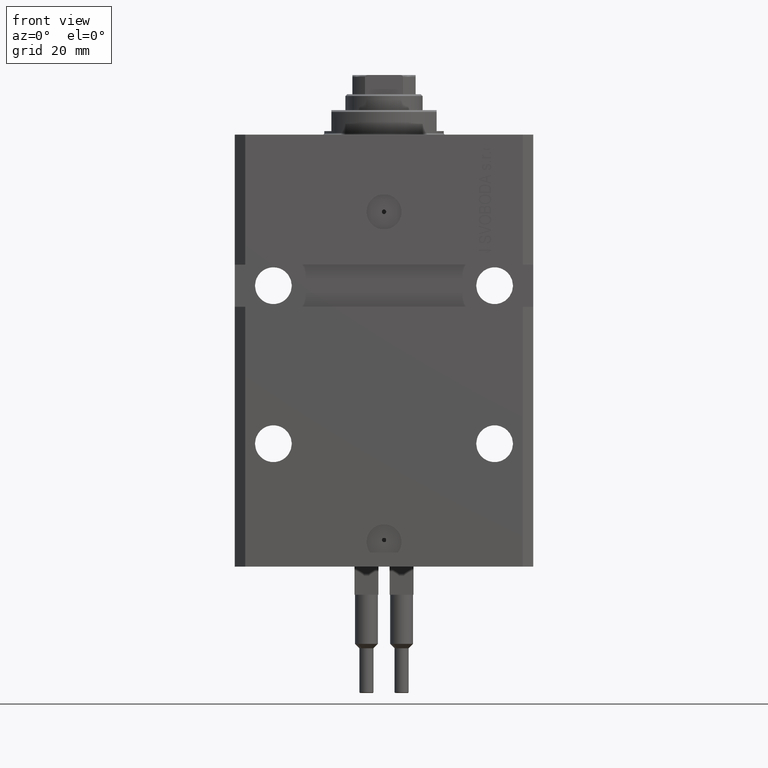
[diagram: clean part render]
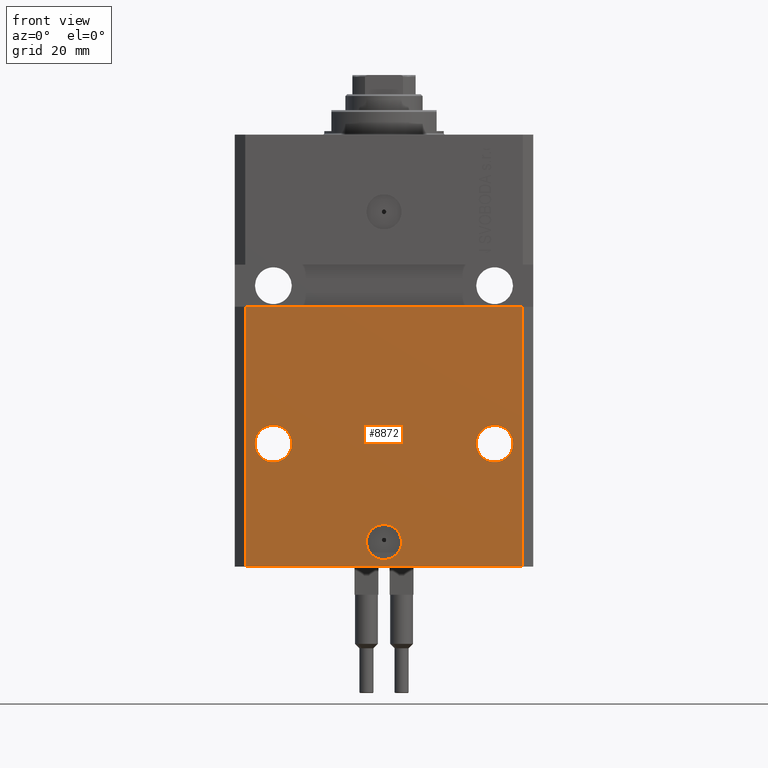
[diagram: same view with one face highlighted and labeled with its STEP entity id]
A machine part, front view. The second image highlights one B-rep face of the part: STEP entity #8872.
In plain terms, the highlighted planar face has unit normal (0, -1, 0).
Its self-contained STEP definition (entity closure, byte-faithful):
#525 = DIRECTION ( 'NONE',  ( 1.176083712526788232E-16, -1.000000000000000000, 0.000000000000000000 ) ) ;
#647 = AXIS2_PLACEMENT_3D ( 'NONE', #20380, #19906, #15464 ) ;
#1228 = DIRECTION ( 'NONE',  ( -1.000000000000000000, 0.000000000000000000, 0.000000000000000000 ) ) ;
#2431 = VERTEX_POINT ( 'NONE', #24863 ) ;
#4311 = PLANE ( 'NONE',  #647 ) ;
#4802 = FACE_OUTER_BOUND ( 'NONE', #31532, .T. ) ;
#4964 = VERTEX_POINT ( 'NONE', #45201 ) ;
#5240 = LINE ( 'NONE', #12923, #11755 ) ;
#6336 = DIRECTION ( 'NONE',  ( -1.000000000000000000, 0.000000000000000000, 0.000000000000000000 ) ) ;
#6623 = CARTESIAN_POINT ( 'NONE',  ( -39.50000000000000711, -31.50000000000000000, -123.0000000000000000 ) ) ;
#6790 = ORIENTED_EDGE ( 'NONE', *, *, #7045, .F. ) ;
#7045 = EDGE_CURVE ( 'NONE', #2431, #48688, #42571, .T. ) ;
#7280 = ORIENTED_EDGE ( 'NONE', *, *, #23198, .F. ) ;
#7544 = AXIS2_PLACEMENT_3D ( 'NONE', #22897, #37986, #19200 ) ;
#8429 = EDGE_LOOP ( 'NONE', ( #17490, #9817 ) ) ;
#8531 = ORIENTED_EDGE ( 'NONE', *, *, #22004, .T. ) ;
#8872 = ADVANCED_FACE ( 'NONE', ( #34992, #46371, #24093, #4802 ), #4311, .T. ) ;
#8986 = CARTESIAN_POINT ( 'NONE',  ( -36.75000000000001421, -31.50000000000000711, -88.00000000000000000 ) ) ;
#9195 = CARTESIAN_POINT ( 'NONE',  ( -39.50000000000000711, -31.50000000000000000, -123.0000000000000000 ) ) ;
#9573 = EDGE_CURVE ( 'NONE', #46129, #21626, #12530, .T. ) ;
#9735 = CARTESIAN_POINT ( 'NONE',  ( 39.50000000000001421, -31.49999999999999289, -48.99999999999997868 ) ) ;
#9817 = ORIENTED_EDGE ( 'NONE', *, *, #19580, .F. ) ;
#9985 = VECTOR ( 'NONE', #13324, 1000.000000000000000 ) ;
#11755 = VECTOR ( 'NONE', #23556, 1000.000000000000000 ) ;
#12017 = CARTESIAN_POINT ( 'NONE',  ( 39.50000000000000711, -31.50000000000000000, -123.0000000000000000 ) ) ;
#12530 = CIRCLE ( 'NONE', #38585, 5.249999999999997335 ) ;
#12923 = CARTESIAN_POINT ( 'NONE',  ( -39.50000000000000711, -31.50000000000000000, -123.0000000000000000 ) ) ;
#13324 = DIRECTION ( 'NONE',  ( 0.000000000000000000, 0.000000000000000000, 1.000000000000000000 ) ) ;
#14894 = VERTEX_POINT ( 'NONE', #6623 ) ;
#15464 = DIRECTION ( 'NONE',  ( 0.000000000000000000, -0.000000000000000000, -1.000000000000000000 ) ) ;
#17490 = ORIENTED_EDGE ( 'NONE', *, *, #9573, .F. ) ;
#19199 = CIRCLE ( 'NONE', #40479, 5.249999999999997335 ) ;
#19200 = DIRECTION ( 'NONE',  ( 1.000000000000000000, 0.000000000000000000, 0.000000000000000000 ) ) ;
#19580 = EDGE_CURVE ( 'NONE', #21626, #46129, #19199, .T. ) ;
#19906 = DIRECTION ( 'NONE',  ( 0.000000000000000000, -1.000000000000000000, 0.000000000000000000 ) ) ;
#20380 = CARTESIAN_POINT ( 'NONE',  ( -39.50000000000000711, -31.50000000000000000, -123.0000000000000000 ) ) ;
#20443 = ORIENTED_EDGE ( 'NONE', *, *, #20953, .F. ) ;
#20953 = EDGE_CURVE ( 'NONE', #47046, #47307, #24013, .T. ) ;
#20962 = CIRCLE ( 'NONE', #7544, 5.000000000000006217 ) ;
#21626 = VERTEX_POINT ( 'NONE', #24318 ) ;
#21692 = DIRECTION ( 'NONE',  ( 1.176083712526788232E-16, -1.000000000000000000, 0.000000000000000000 ) ) ;
#22004 = EDGE_CURVE ( 'NONE', #14894, #24065, #27253, .T. ) ;
#22897 = CARTESIAN_POINT ( 'NONE',  ( 0.000000000000000000, -31.50000000000000000, -115.9999999999999858 ) ) ;
#23198 = EDGE_CURVE ( 'NONE', #4964, #25131, #37360, .T. ) ;
#23556 = DIRECTION ( 'NONE',  ( 0.000000000000000000, 0.000000000000000000, 1.000000000000000000 ) ) ;
#23585 = CARTESIAN_POINT ( 'NONE',  ( 36.75000000000001421, -31.49999999999999289, -88.00000000000000000 ) ) ;
#24013 = LINE ( 'NONE', #43058, #26348 ) ;
#24065 = VERTEX_POINT ( 'NONE', #12017 ) ;
#24093 = FACE_BOUND ( 'NONE', #41127, .T. ) ;
#24209 = CARTESIAN_POINT ( 'NONE',  ( 39.50000000000000711, -31.50000000000000000, -123.0000000000000000 ) ) ;
#24318 = CARTESIAN_POINT ( 'NONE',  ( 26.25000000000001776, -31.49999999999999289, -88.00000000000000000 ) ) ;
#24863 = CARTESIAN_POINT ( 'NONE',  ( 5.000000000000006217, -31.50000000000000000, -115.9999999999999858 ) ) ;
#25131 = VERTEX_POINT ( 'NONE', #8986 ) ;
#25899 = CIRCLE ( 'NONE', #48038, 5.249999999999997335 ) ;
#26348 = VECTOR ( 'NONE', #46538, 1000.000000000000000 ) ;
#26506 = CARTESIAN_POINT ( 'NONE',  ( 0.000000000000000000, -31.50000000000000000, -115.9999999999999858 ) ) ;
#26930 = DIRECTION ( 'NONE',  ( 1.176083712526788232E-16, -1.000000000000000000, 0.000000000000000000 ) ) ;
#27253 = LINE ( 'NONE', #9195, #36517 ) ;
#27873 = AXIS2_PLACEMENT_3D ( 'NONE', #38345, #46260, #1228 ) ;
#29367 = CARTESIAN_POINT ( 'NONE',  ( 31.50000000000001421, -31.49999999999999289, -88.00000000000000000 ) ) ;
#29671 = CARTESIAN_POINT ( 'NONE',  ( 31.50000000000001421, -31.49999999999999289, -88.00000000000000000 ) ) ;
#30935 = CARTESIAN_POINT ( 'NONE',  ( -5.000000000000006217, -31.50000000000000000, -115.9999999999999858 ) ) ;
#31532 = EDGE_LOOP ( 'NONE', ( #20443, #38095, #8531, #38206 ) ) ;
#32384 = EDGE_LOOP ( 'NONE', ( #6790, #38455 ) ) ;
#34992 = FACE_BOUND ( 'NONE', #32384, .T. ) ;
#36517 = VECTOR ( 'NONE', #39601, 1000.000000000000000 ) ;
#36784 = DIRECTION ( 'NONE',  ( 1.000000000000000000, 0.000000000000000000, 0.000000000000000000 ) ) ;
#36986 = DIRECTION ( 'NONE',  ( 1.176083712526788232E-16, -1.000000000000000000, 0.000000000000000000 ) ) ;
#37360 = CIRCLE ( 'NONE', #27873, 5.249999999999997335 ) ;
#37986 = DIRECTION ( 'NONE',  ( 1.176083712526788232E-16, -1.000000000000000000, 0.000000000000000000 ) ) ;
#38095 = ORIENTED_EDGE ( 'NONE', *, *, #45803, .F. ) ;
#38206 = ORIENTED_EDGE ( 'NONE', *, *, #40859, .T. ) ;
#38345 = CARTESIAN_POINT ( 'NONE',  ( -31.50000000000001421, -31.50000000000000711, -88.00000000000000000 ) ) ;
#38455 = ORIENTED_EDGE ( 'NONE', *, *, #39043, .F. ) ;
#38585 = AXIS2_PLACEMENT_3D ( 'NONE', #29671, #26930, #44748 ) ;
#39043 = EDGE_CURVE ( 'NONE', #48688, #2431, #20962, .T. ) ;
#39295 = LINE ( 'NONE', #24209, #9985 ) ;
#39439 = ORIENTED_EDGE ( 'NONE', *, *, #45405, .F. ) ;
#39601 = DIRECTION ( 'NONE',  ( 1.000000000000000000, 0.000000000000000000, 0.000000000000000000 ) ) ;
#40479 = AXIS2_PLACEMENT_3D ( 'NONE', #29367, #21692, #36784 ) ;
#40859 = EDGE_CURVE ( 'NONE', #24065, #47307, #39295, .T. ) ;
#41127 = EDGE_LOOP ( 'NONE', ( #7280, #39439 ) ) ;
#41157 = CARTESIAN_POINT ( 'NONE',  ( -39.50000000000000000, -31.50000000000000711, -48.99999999999999289 ) ) ;
#42571 = CIRCLE ( 'NONE', #48897, 5.000000000000006217 ) ;
#43058 = CARTESIAN_POINT ( 'NONE',  ( -42.50000000000000000, -31.50000000000000711, -48.99999999999999289 ) ) ;
#44167 = CARTESIAN_POINT ( 'NONE',  ( -31.50000000000001421, -31.50000000000000711, -88.00000000000000000 ) ) ;
#44748 = DIRECTION ( 'NONE',  ( 1.000000000000000000, 0.000000000000000000, 0.000000000000000000 ) ) ;
#45201 = CARTESIAN_POINT ( 'NONE',  ( -26.25000000000001776, -31.50000000000000711, -88.00000000000000000 ) ) ;
#45405 = EDGE_CURVE ( 'NONE', #25131, #4964, #25899, .T. ) ;
#45803 = EDGE_CURVE ( 'NONE', #14894, #47046, #5240, .T. ) ;
#46129 = VERTEX_POINT ( 'NONE', #23585 ) ;
#46260 = DIRECTION ( 'NONE',  ( 1.176083712526788232E-16, -1.000000000000000000, 0.000000000000000000 ) ) ;
#46371 = FACE_BOUND ( 'NONE', #8429, .T. ) ;
#46538 = DIRECTION ( 'NONE',  ( 1.000000000000000000, 1.632680918566406300E-16, 1.632680918566406300E-16 ) ) ;
#47046 = VERTEX_POINT ( 'NONE', #41157 ) ;
#47307 = VERTEX_POINT ( 'NONE', #9735 ) ;
#48038 = AXIS2_PLACEMENT_3D ( 'NONE', #44167, #36986, #6336 ) ;
#48530 = DIRECTION ( 'NONE',  ( 1.000000000000000000, 0.000000000000000000, 0.000000000000000000 ) ) ;
#48688 = VERTEX_POINT ( 'NONE', #30935 ) ;
#48897 = AXIS2_PLACEMENT_3D ( 'NONE', #26506, #525, #48530 ) ;